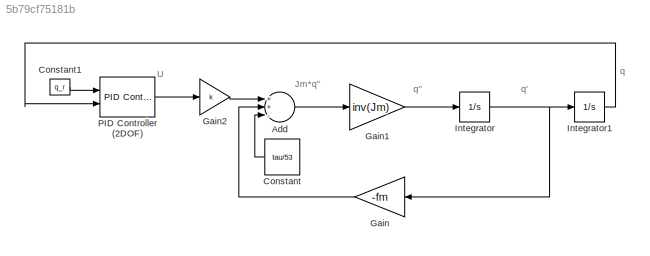
MODEL slx_5b79cf75181b
KIND model
CONFIG AbsTol = auto
CONFIG EnableMultiTasking = off
CONFIG FixedStep = auto
CONFIG MaxStep = auto
CONFIG MinStep = auto
CONFIG RelTol = 1e-3
CONFIG SampleTimeConstraint = Unconstrained
CONFIG Solver = VariableStepAuto
CONFIG SolverName = VariableStepAuto
CONFIG StartTime = 0.0
CONFIG StopTime = 10.0
BLOCK [Sum] Add
  InputSameDT = off
  Inputs = ++-
  OutDataTypeStr = Inherit: Inherit via internal rule
  Ports = [3, 1]
  SaturateOnIntegerOverflow = off
BLOCK [Constant] Constant
  Value = tau/53
BLOCK [Constant] Constant1
  Value = q_r
BLOCK [Gain] Gain
  Gain = -fm
  OutDataTypeStr = Inherit: Inherit via internal rule
  ParamDataTypeStr = Inherit: Inherit via internal rule
  SaturateOnIntegerOverflow = off
BLOCK [Gain] Gain1
  Gain = inv(Jm)
  OutDataTypeStr = Inherit: Inherit via internal rule
  ParamDataTypeStr = Inherit: Inherit via internal rule
  SaturateOnIntegerOverflow = off
BLOCK [Gain] Gain2
  Gain = k
  OutDataTypeStr = Inherit: Inherit via internal rule
  ParamDataTypeStr = Inherit: Inherit via internal rule
  SaturateOnIntegerOverflow = off
BLOCK [Integrator] Integrator
  Ports = [1, 1]
BLOCK [Integrator] Integrator1
  Ports = [1, 1]
BLOCK [Reference] PID Controller (2DOF)  REF=simulink/Continuous/PID Controller (2DOF)
  Ports = [2, 1]
  SourceBlock = simulink/Continuous/PID Controller (2DOF)
  SourceProductBaseCode = SL
  SourceProductName = Simulink
  SourceType = PID 2dof
ANNOTATION (root): Jm*q''
ANNOTATION (root): U
ANNOTATION (root): q
ANNOTATION (root): q'
ANNOTATION (root): q''
LINE Add:1 -> Gain1:1
LINE Constant1:1 -> PID Controller (2DOF):1
LINE Constant:1 -> Add:3
LINE Gain1:1 -> Integrator:1
LINE Gain2:1 -> Add:1
LINE Gain:1 -> Add:2
LINE Integrator1:1 -> PID Controller (2DOF):2
NET Integrator:1 -> Gain:1, Integrator1:1
LINE PID Controller (2DOF):1 -> Gain2:1
note: NET lines group one-source signal fan-out (src -> all destinations, sorted); 1:1 wires keep LINE
